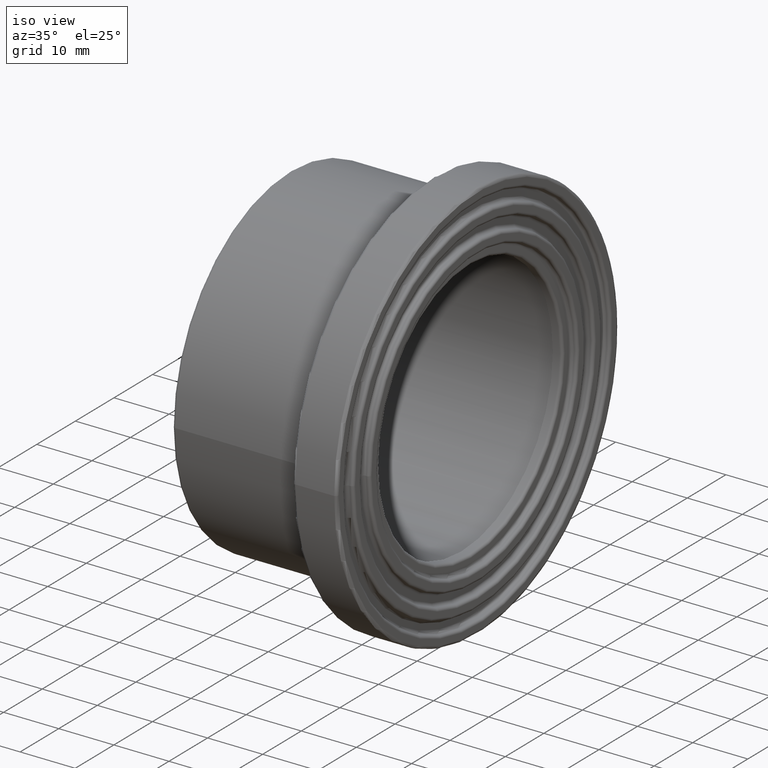
[diagram: clean part render]
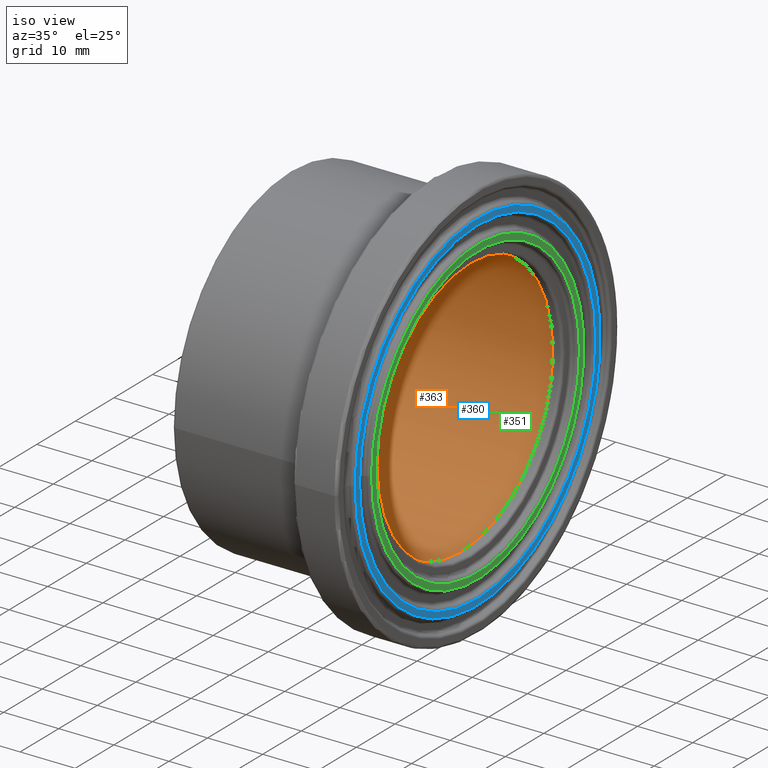
[diagram: same view with three faces highlighted in distinct colors, each labeled with its STEP entity id]
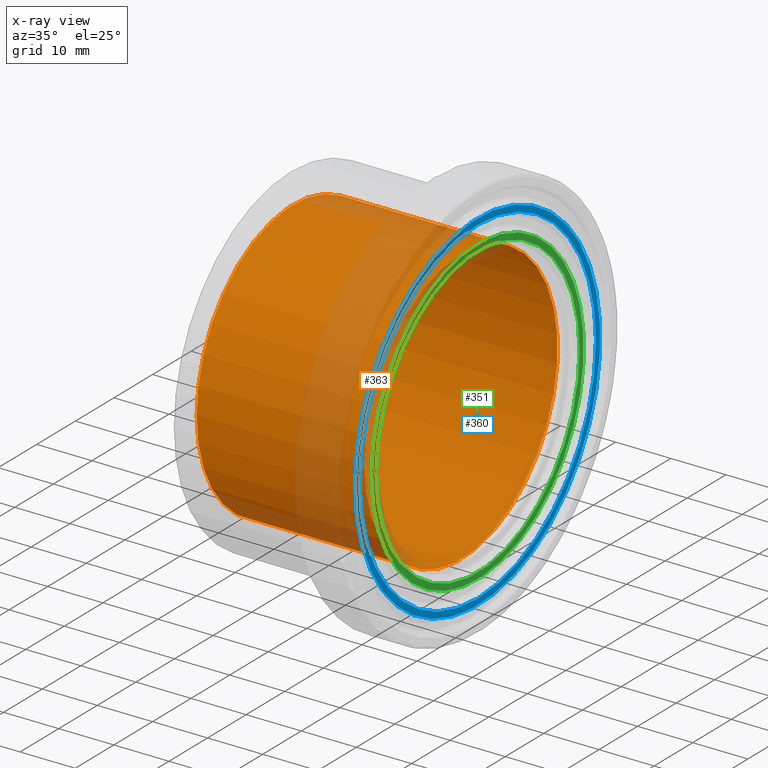
[diagram: x-ray of the same camera — body ghosted, the three highlighted faces saturated]
A machine part, iso view with three faces highlighted in distinct colors.
The next image is the same camera in x-ray (body ghosted, the three faces saturated) — at least one of them is partly hidden behind the body in this view.
Their STEP definitions:

[orange] entity #363 — the highlighted cylindrical surface (bore or boss wall) has radius 25 mm, axis along (-1, 0, 0).
#19=CYLINDRICAL_SURFACE('',#419,25.);
#51=FACE_BOUND('',#136,.T.);
#84=FACE_OUTER_BOUND('',#135,.T.);
#135=EDGE_LOOP('',(#300));
#136=EDGE_LOOP('',(#301));
#184=CIRCLE('',#416,25.);
#186=CIRCLE('',#420,25.);
#217=VERTEX_POINT('',#636);
#219=VERTEX_POINT('',#642);
#250=EDGE_CURVE('',#217,#217,#184,.T.);
#252=EDGE_CURVE('',#219,#219,#186,.T.);
#300=ORIENTED_EDGE('',*,*,#252,.F.);
#301=ORIENTED_EDGE('',*,*,#250,.F.);
#363=ADVANCED_FACE('',(#84,#51),#19,.F.);
#416=AXIS2_PLACEMENT_3D('',#637,#520,#521);
#419=AXIS2_PLACEMENT_3D('',#641,#526,#527);
#420=AXIS2_PLACEMENT_3D('',#643,#528,#529);
#520=DIRECTION('center_axis',(1.,0.,0.));
#521=DIRECTION('ref_axis',(0.,1.,6.12323399573677E-17));
#526=DIRECTION('center_axis',(-1.,0.,0.));
#527=DIRECTION('ref_axis',(0.,-1.,0.));
#528=DIRECTION('center_axis',(-1.,0.,0.));
#529=DIRECTION('ref_axis',(0.,0.,1.));
#636=CARTESIAN_POINT('',(0.5,-25.,-4.59242549680257E-15));
#637=CARTESIAN_POINT('Origin',(0.5,0.,0.));
#641=CARTESIAN_POINT('Origin',(15.5,0.,0.));
#642=CARTESIAN_POINT('',(31.,-25.,0.));
#643=CARTESIAN_POINT('Origin',(31.,0.,0.));

[blue] entity #360 — the highlighted planar face has unit normal (1, 0, 0).
#28=PLANE('',#412);
#48=FACE_BOUND('',#130,.T.);
#81=FACE_OUTER_BOUND('',#129,.T.);
#129=EDGE_LOOP('',(#294));
#130=EDGE_LOOP('',(#295));
#181=CIRCLE('',#411,31.75);
#182=CIRCLE('',#413,30.625);
#214=VERTEX_POINT('',#628);
#215=VERTEX_POINT('',#631);
#247=EDGE_CURVE('',#214,#214,#181,.T.);
#248=EDGE_CURVE('',#215,#215,#182,.T.);
#294=ORIENTED_EDGE('',*,*,#247,.F.);
#295=ORIENTED_EDGE('',*,*,#248,.F.);
#360=ADVANCED_FACE('',(#81,#48),#28,.T.);
#411=AXIS2_PLACEMENT_3D('',#629,#510,#511);
#412=AXIS2_PLACEMENT_3D('',#630,#512,#513);
#413=AXIS2_PLACEMENT_3D('',#632,#514,#515);
#510=DIRECTION('center_axis',(-1.,0.,0.));
#511=DIRECTION('ref_axis',(0.,1.,6.12323399573676E-17));
#512=DIRECTION('center_axis',(1.,0.,0.));
#513=DIRECTION('ref_axis',(0.,0.,-1.));
#514=DIRECTION('center_axis',(1.,0.,0.));
#515=DIRECTION('ref_axis',(0.,1.,6.12323399573677E-17));
#628=CARTESIAN_POINT('',(34.,-31.75,1.94412679364642E-15));
#629=CARTESIAN_POINT('Origin',(34.,0.,0.));
#630=CARTESIAN_POINT('Origin',(34.,-32.25,0.));
#631=CARTESIAN_POINT('',(34.,-30.625,-5.62572123358315E-15));
#632=CARTESIAN_POINT('Origin',(34.,0.,0.));

[green] entity #351 — the highlighted planar face has unit normal (1, 0, 0).
#25=PLANE('',#393);
#39=FACE_BOUND('',#112,.T.);
#72=FACE_OUTER_BOUND('',#111,.T.);
#111=EDGE_LOOP('',(#276));
#112=EDGE_LOOP('',(#277));
#171=CIRCLE('',#392,26.375);
#172=CIRCLE('',#394,27.5);
#204=VERTEX_POINT('',#599);
#205=VERTEX_POINT('',#602);
#237=EDGE_CURVE('',#204,#204,#171,.T.);
#238=EDGE_CURVE('',#205,#205,#172,.T.);
#276=ORIENTED_EDGE('',*,*,#238,.F.);
#277=ORIENTED_EDGE('',*,*,#237,.F.);
#351=ADVANCED_FACE('',(#72,#39),#25,.T.);
#392=AXIS2_PLACEMENT_3D('',#600,#472,#473);
#393=AXIS2_PLACEMENT_3D('',#601,#474,#475);
#394=AXIS2_PLACEMENT_3D('',#603,#476,#477);
#472=DIRECTION('center_axis',(1.,0.,0.));
#473=DIRECTION('ref_axis',(0.,1.,6.12323399573677E-17));
#474=DIRECTION('center_axis',(1.,0.,0.));
#475=DIRECTION('ref_axis',(0.,0.,-1.));
#476=DIRECTION('center_axis',(-1.,0.,0.));
#477=DIRECTION('ref_axis',(0.,1.,6.12323399573677E-17));
#599=CARTESIAN_POINT('',(34.,-26.375,-4.84500889912671E-15));
#600=CARTESIAN_POINT('Origin',(34.,0.,0.));
#601=CARTESIAN_POINT('Origin',(34.,-28.,0.));
#602=CARTESIAN_POINT('',(34.,-27.5,1.68388934882761E-15));
#603=CARTESIAN_POINT('Origin',(34.,0.,0.));